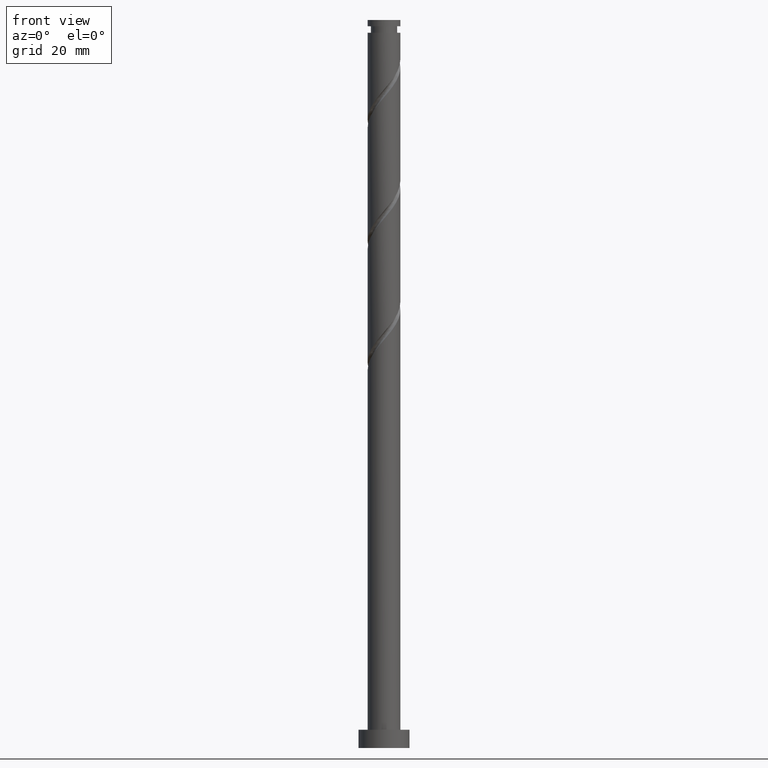
[diagram: clean part render]
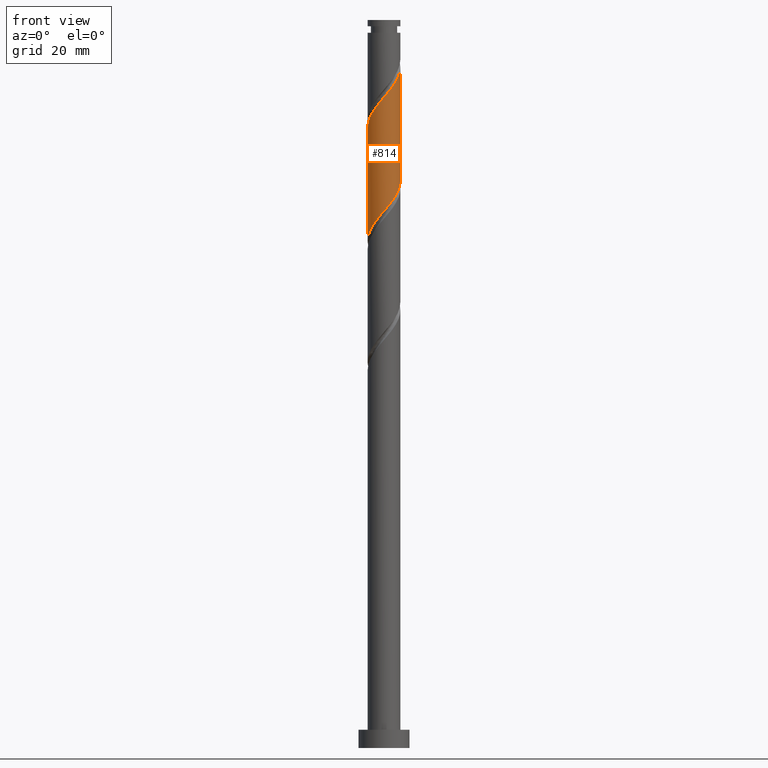
[diagram: same view with one face highlighted and labeled with its STEP entity id]
A machine part, front view. The second image highlights one B-rep face of the part: STEP entity #814.
In plain terms, the highlighted cylindrical surface (edge-blend (fillet) strip) has radius 4.5 mm, axis along (-0, -0, -1).
Its self-contained STEP definition (entity closure, byte-faithful):
#3 = ORIENTED_EDGE ( 'NONE', *, *, #1651, .F. ) ;
#30 = LINE ( 'NONE', #180, #527 ) ;
#57 = CARTESIAN_POINT ( 'NONE',  ( -4.410000000000008136, -0.8954886933959593787, 171.5007470407993253 ) ) ;
#62 = CARTESIAN_POINT ( 'NONE',  ( 3.424372832315394799, -2.979035314116054600, 183.3063025963547830 ) ) ;
#70 = CARTESIAN_POINT ( 'NONE',  ( -1.476076207756376046, -4.292106676953148181, 145.8063025963547830 ) ) ;
#85 = CARTESIAN_POINT ( 'NONE',  ( 4.500000000000005329, -0.1383387824595338766, 186.9406833642277093 ) ) ;
#99 = CARTESIAN_POINT ( 'NONE',  ( -4.500000000000000888, 4.949702650838273832E-15, 139.2309803626759788 ) ) ;
#115 = ORIENTED_EDGE ( 'NONE', *, *, #1364, .T. ) ;
#149 =( BOUNDED_CURVE ( )  B_SPLINE_CURVE ( 2, ( #1408, #1567, #57, #348, #1674, #887, #1155, #1283, #862, #759, #995, #738, #1423, #1438, #454, #461, #338, #1275, #208, #62, #448, #1148, #1429, #1012, #751, #85, #631 ),
 .UNSPECIFIED., .F., .T. ) 
 B_SPLINE_CURVE_WITH_KNOTS ( ( 3, 2, 2, 2, 2, 2, 2, 2, 2, 2, 2, 2, 2, 3 ),
 ( 0.5545317669814461281, 0.5625000000000000000, 0.5729166666666667407, 0.5833333333333332593, 0.5937500000000000000, 0.6041666666666667407, 0.6145833333333332593, 0.6250000000000000000, 0.6354166666666667407, 0.6458333333333332593, 0.6562500000000000000, 0.6666666666666667407, 0.6770833333333332593, 0.6795317669814462391 ),
 .UNSPECIFIED. ) 
 CURVE ( )  GEOMETRIC_REPRESENTATION_ITEM ( )  RATIONAL_B_SPLINE_CURVE ( ( 0.9062941362546460544, 0.9031415850403502477, 0.9090909090909256030, 0.9013135103398440817, 0.9090909090909256030, 0.9013135103398440817, 0.9090909090909256030, 0.9013135103398440817, 0.9090909090909256030, 0.9013135103398440817, 0.9090909090909256030, 0.9013135103398440817, 0.9090909090909256030, 0.9013135103398440817, 0.9090909090909256030, 0.9013135103398440817, 0.9090909090909256030, 0.9013135103398440817, 0.9090909090909256030, 0.9013135103398440817, 0.9090909090909256030, 0.9013135103398440817, 0.9090909090909256030, 0.9013135103398440817, 0.9090909090909256030, 0.9072628343904194370, 0.9062941362546460544 ) ) 
 REPRESENTATION_ITEM ( '' )  );
#151 = CARTESIAN_POINT ( 'NONE',  ( 4.500000000000006217, -1.525286013249246193E-15, 187.1038470522558725 ) ) ;
#180 = CARTESIAN_POINT ( 'NONE',  ( -4.500000000000000000, 0.000000000000000000, 200.0000000000000000 ) ) ;
#194 = CARTESIAN_POINT ( 'NONE',  ( 4.409999999999999254, -0.8954886933959597117, 154.8340803741326113 ) ) ;
#199 =( BOUNDED_CURVE ( )  B_SPLINE_CURVE ( 2, ( #1164, #1299, #194, #1553, #1267, #215, #1020, #1697, #1004, #878, #728, #743, #1559, #469, #476, #70, #331, #1544, #1537, #622, #1139, #314, #1028, #1416, #1291, #855, #321 ),
 .UNSPECIFIED., .F., .T. ) 
 B_SPLINE_CURVE_WITH_KNOTS ( ( 3, 2, 2, 2, 2, 2, 2, 2, 2, 2, 2, 2, 2, 3 ),
 ( 0.5545317669814462391, 0.5625000000000000000, 0.5729166666666666297, 0.5833333333333333703, 0.5937500000000000000, 0.6041666666666666297, 0.6145833333333333703, 0.6250000000000000000, 0.6354166666666666297, 0.6458333333333333703, 0.6562500000000000000, 0.6666666666666666297, 0.6770833333333333703, 0.6795317669814463502 ),
 .UNSPECIFIED. ) 
 CURVE ( )  GEOMETRIC_REPRESENTATION_ITEM ( )  RATIONAL_B_SPLINE_CURVE ( ( 0.9062941362546398372, 0.9031415850403439194, 0.9090909090909194967, 0.9013135103398377534, 0.9090909090909194967, 0.9013135103398377534, 0.9090909090909194967, 0.9013135103398377534, 0.9090909090909194967, 0.9013135103398377534, 0.9090909090909194967, 0.9013135103398377534, 0.9090909090909194967, 0.9013135103398377534, 0.9090909090909194967, 0.9013135103398377534, 0.9090909090909194967, 0.9013135103398377534, 0.9090909090909194967, 0.9013135103398377534, 0.9090909090909194967, 0.9013135103398377534, 0.9090909090909194967, 0.9013135103398377534, 0.9090909090909194967, 0.9072628343904132198, 0.9062941362546397261 ) ) 
 REPRESENTATION_ITEM ( '' )  );
#208 = CARTESIAN_POINT ( 'NONE',  ( 2.980515957282637185, -3.371427683991401913, 182.6118581519103827 ) ) ;
#210 = VERTEX_POINT ( 'NONE', #1565 ) ;
#215 = CARTESIAN_POINT ( 'NONE',  ( 3.763820053866741677, -2.536659082249880459, 152.7507470407992685 ) ) ;
#273 = VERTEX_POINT ( 'NONE', #99 ) ;
#277 = CARTESIAN_POINT ( 'NONE',  ( 0.000000000000000000, 0.000000000000000000, 200.0000000000000000 ) ) ;
#314 = CARTESIAN_POINT ( 'NONE',  ( -4.078721232902286609, -1.991234240796972310, 141.6396359296881542 ) ) ;
#321 = CARTESIAN_POINT ( 'NONE',  ( -4.500000000000001776, 4.949702650838273832E-15, 139.2309803626759788 ) ) ;
#331 = CARTESIAN_POINT ( 'NONE',  ( -2.006367645003127365, -4.027963365409944707, 145.1118581519103259 ) ) ;
#338 = CARTESIAN_POINT ( 'NONE',  ( 2.006367645003126920, -4.027963365409951813, 181.2229692630214686 ) ) ;
#348 = CARTESIAN_POINT ( 'NONE',  ( -4.292106676953157063, -1.476076207756375158, 172.1951914852436971 ) ) ;
#351 = VERTEX_POINT ( 'NONE', #151 ) ;
#367 = EDGE_CURVE ( 'NONE', #351, #210, #1069, .T. ) ;
#385 = VERTEX_POINT ( 'NONE', #400 ) ;
#400 = CARTESIAN_POINT ( 'NONE',  ( -4.500000000000006217, -1.241164108820464889E-15, 170.4371803855892438 ) ) ;
#409 = FACE_OUTER_BOUND ( 'NONE', #929, .T. ) ;
#448 = CARTESIAN_POINT ( 'NONE',  ( 3.751547032608842702, -2.485134777456517341, 184.0007470407992685 ) ) ;
#454 = CARTESIAN_POINT ( 'NONE',  ( 0.8954886933959591566, -4.410000000000008136, 179.8340803741326113 ) ) ;
#461 = CARTESIAN_POINT ( 'NONE',  ( 1.476076207756375158, -4.292106676953157063, 180.5285248185770683 ) ) ;
#469 = CARTESIAN_POINT ( 'NONE',  ( -0.3149011790355445983, -4.527893323046852991, 147.1951914852436403 ) ) ;
#476 = CARTESIAN_POINT ( 'NONE',  ( -0.8954886933959594897, -4.409999999999999254, 146.5007470407992685 ) ) ;
#527 = VECTOR ( 'NONE', #1649, 1000.000000000000000 ) ;
#534 = DIRECTION ( 'NONE',  ( -0.000000000000000000, -0.000000000000000000, -1.000000000000000000 ) ) ;
#622 = CARTESIAN_POINT ( 'NONE',  ( -3.424372832315393467, -2.979035314116047495, 143.0285248185770683 ) ) ;
#631 = CARTESIAN_POINT ( 'NONE',  ( 4.500000000000006217, -1.525286013249246193E-15, 187.1038470522558725 ) ) ;
#701 = VECTOR ( 'NONE', #1344, 1000.000000000000000 ) ;
#728 = CARTESIAN_POINT ( 'NONE',  ( 1.429484042717363845, -4.266916377387353521, 149.2785248185770399 ) ) ;
#738 = CARTESIAN_POINT ( 'NONE',  ( -0.8677338446377593772, -4.455111521872428426, 177.7507470407992685 ) ) ;
#743 = CARTESIAN_POINT ( 'NONE',  ( 0.8677338446377543812, -4.455111521872423985, 148.5840803741325828 ) ) ;
#751 = CARTESIAN_POINT ( 'NONE',  ( 4.491502422459643817, -0.2764163328011113863, 186.7785248185770683 ) ) ;
#759 = CARTESIAN_POINT ( 'NONE',  ( -1.991234240796978527, -4.078721232902291050, 176.3618581519103543 ) ) ;
#768 = ORIENTED_EDGE ( 'NONE', *, *, #1626, .F. ) ;
#814 = ADVANCED_FACE ( 'NONE', ( #409 ), #825, .T. ) ;
#825 = CYLINDRICAL_SURFACE ( 'NONE', #1635, 4.500000000000000000 ) ;
#855 = CARTESIAN_POINT ( 'NONE',  ( -4.500000000000001776, -0.1383387824595271598, 139.3941440507041136 ) ) ;
#862 = CARTESIAN_POINT ( 'NONE',  ( -2.485134777456515565, -3.751547032608843590, 175.6674137074660109 ) ) ;
#878 = CARTESIAN_POINT ( 'NONE',  ( 1.991234240796972310, -4.078721232902286609, 149.9729692630214686 ) ) ;
#887 = CARTESIAN_POINT ( 'NONE',  ( -3.763820053866749227, -2.536659082249879571, 173.5840803741325828 ) ) ;
#929 = EDGE_LOOP ( 'NONE', ( #1059, #3, #115, #768 ) ) ;
#995 = CARTESIAN_POINT ( 'NONE',  ( -1.429484042717369618, -4.266916377387359738, 177.0563025963548398 ) ) ;
#1004 = CARTESIAN_POINT ( 'NONE',  ( 2.485134777456508015, -3.751547032608839150, 150.6674137074659257 ) ) ;
#1012 = CARTESIAN_POINT ( 'NONE',  ( 4.455111521872428426, -0.8677338446377614867, 186.0840803741326113 ) ) ;
#1020 = CARTESIAN_POINT ( 'NONE',  ( 3.371427683991394364, -2.980515957282635853, 152.0563025963548114 ) ) ;
#1028 = CARTESIAN_POINT ( 'NONE',  ( -4.266916377387353521, -1.429484042717364067, 140.9451914852437255 ) ) ;
#1059 = ORIENTED_EDGE ( 'NONE', *, *, #367, .F. ) ;
#1069 = LINE ( 'NONE', #1207, #701 ) ;
#1139 = CARTESIAN_POINT ( 'NONE',  ( -3.751547032608838261, -2.485134777456510680, 142.3340803741325544 ) ) ;
#1148 = CARTESIAN_POINT ( 'NONE',  ( 4.078721232902290161, -1.991234240796978749, 184.6951914852437540 ) ) ;
#1155 = CARTESIAN_POINT ( 'NONE',  ( -3.371427683991401025, -2.980515957282637185, 174.2785248185770683 ) ) ;
#1164 = CARTESIAN_POINT ( 'NONE',  ( 4.500000000000000000, 6.474988664087530280E-15, 155.8976470293426360 ) ) ;
#1207 = CARTESIAN_POINT ( 'NONE',  ( 4.500000000000000000, 5.510910596163088569E-16, 200.0000000000000000 ) ) ;
#1267 = CARTESIAN_POINT ( 'NONE',  ( 4.027963365409942931, -2.006367645003129585, 153.4451914852436971 ) ) ;
#1275 = CARTESIAN_POINT ( 'NONE',  ( 2.536659082249878683, -3.763820053866749227, 181.9174137074659541 ) ) ;
#1283 = CARTESIAN_POINT ( 'NONE',  ( -2.979035314116054600, -3.424372832315394799, 174.9729692630214970 ) ) ;
#1291 = CARTESIAN_POINT ( 'NONE',  ( -4.491502422459638488, -0.2764163328011062792, 139.5563025963547830 ) ) ;
#1299 = CARTESIAN_POINT ( 'NONE',  ( 4.500000000000001776, -0.4522670168666432233, 155.3642206601533928 ) ) ;
#1344 = DIRECTION ( 'NONE',  ( -0.000000000000000000, -0.000000000000000000, -1.000000000000000000 ) ) ;
#1364 = EDGE_CURVE ( 'NONE', #385, #273, #30, .T. ) ;
#1408 = CARTESIAN_POINT ( 'NONE',  ( -4.500000000000006217, -1.241164108820464691E-15, 170.4371803855892438 ) ) ;
#1416 = CARTESIAN_POINT ( 'NONE',  ( -4.455111521872423985, -0.8677338446377556025, 140.2507470407992969 ) ) ;
#1423 = CARTESIAN_POINT ( 'NONE',  ( -0.2764163328011091103, -4.491502422459643817, 178.4451914852437540 ) ) ;
#1429 = CARTESIAN_POINT ( 'NONE',  ( 4.266916377387359738, -1.429484042717370507, 185.3896359296882110 ) ) ;
#1438 = CARTESIAN_POINT ( 'NONE',  ( 0.3149011790355413232, -4.527893323046858320, 179.1396359296881542 ) ) ;
#1537 = CARTESIAN_POINT ( 'NONE',  ( -2.980515957282634965, -3.371427683991394364, 143.7229692630214686 ) ) ;
#1544 = CARTESIAN_POINT ( 'NONE',  ( -2.536659082249878683, -3.763820053866741677, 144.4174137074658972 ) ) ;
#1553 = CARTESIAN_POINT ( 'NONE',  ( 4.292106676953146405, -1.476076207756378267, 154.1396359296882110 ) ) ;
#1559 = CARTESIAN_POINT ( 'NONE',  ( 0.2764163328011050580, -4.491502422459638488, 147.8896359296881258 ) ) ;
#1565 = CARTESIAN_POINT ( 'NONE',  ( 4.500000000000000000, 6.474988664087530280E-15, 155.8976470293426360 ) ) ;
#1567 = CARTESIAN_POINT ( 'NONE',  ( -4.500000000000007994, -0.4522670168666398927, 170.9706067547784869 ) ) ;
#1626 = EDGE_CURVE ( 'NONE', #210, #273, #199, .T. ) ;
#1635 = AXIS2_PLACEMENT_3D ( 'NONE', #277, #534, #1646 ) ;
#1646 = DIRECTION ( 'NONE',  ( -1.000000000000000000, 0.000000000000000000, 0.000000000000000000 ) ) ;
#1649 = DIRECTION ( 'NONE',  ( -0.000000000000000000, -0.000000000000000000, -1.000000000000000000 ) ) ;
#1651 = EDGE_CURVE ( 'NONE', #385, #351, #149, .T. ) ;
#1674 = CARTESIAN_POINT ( 'NONE',  ( -4.027963365409951813, -2.006367645003127809, 172.8896359296881826 ) ) ;
#1697 = CARTESIAN_POINT ( 'NONE',  ( 2.979035314116047495, -3.424372832315392579, 151.3618581519104112 ) ) ;